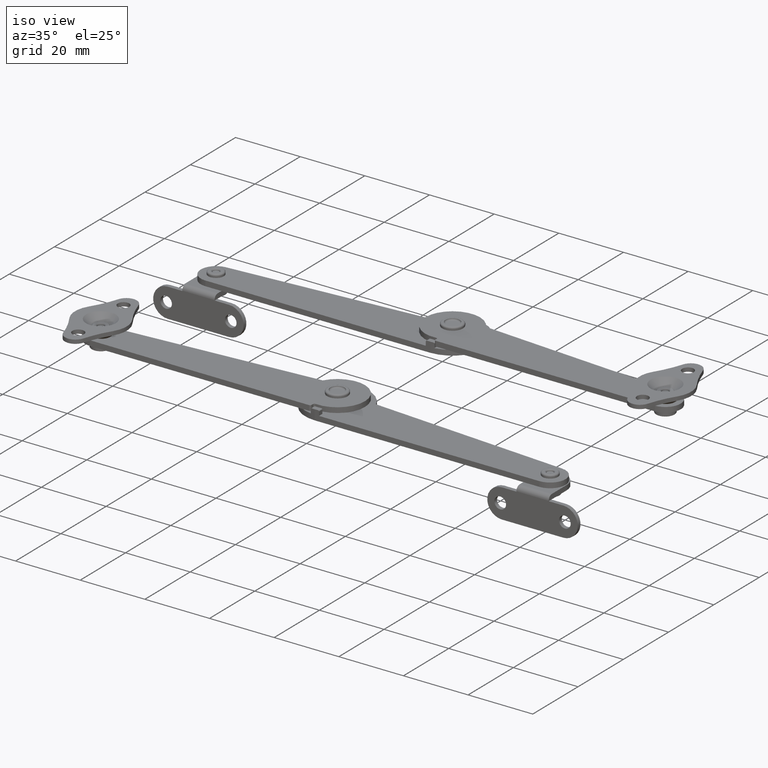
[diagram: clean part render]
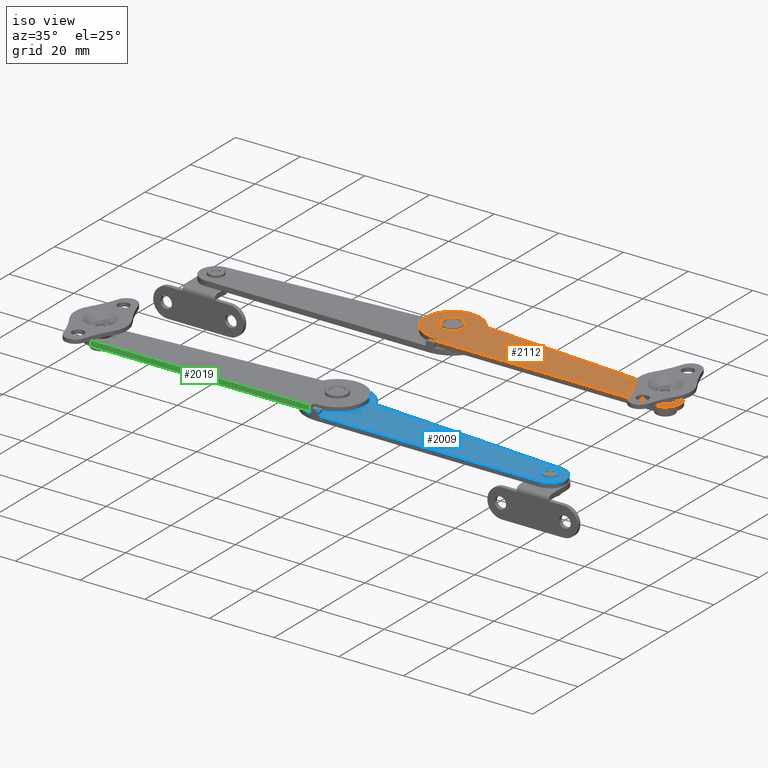
[diagram: same view with three faces highlighted in distinct colors, each labeled with its STEP entity id]
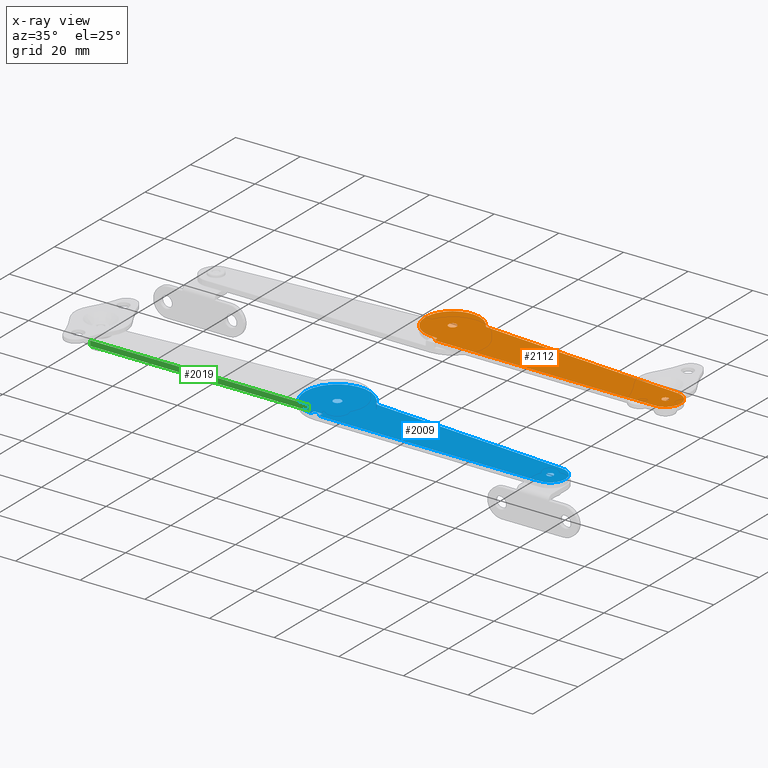
[diagram: x-ray of the same camera — body ghosted, the three highlighted faces saturated]
A machine part, iso view with three faces highlighted in distinct colors.
The next image is the same camera in x-ray (body ghosted, the three faces saturated) — at least one of them is partly hidden behind the body in this view.
Their STEP definitions:

[orange] entity #2112 — the highlighted planar face has unit normal (0, 0, 1).
#250=FACE_BOUND('',#652,.T.);
#251=FACE_BOUND('',#653,.T.);
#325=PLANE('',#2388);
#447=FACE_OUTER_BOUND('',#651,.T.);
#651=EDGE_LOOP('',(#1886,#1887,#1888,#1889,#1890,#1891,#1892));
#652=EDGE_LOOP('',(#1893));
#653=EDGE_LOOP('',(#1894));
#806=CIRCLE('',#2368,0.5);
#812=CIRCLE('',#2377,0.5);
#813=CIRCLE('',#2380,1.25);
#814=CIRCLE('',#2382,1.);
#815=CIRCLE('',#2384,8.5);
#816=CIRCLE('',#2387,4.75);
#934=LINE('',#3654,#1033);
#937=LINE('',#3662,#1036);
#939=LINE('',#3675,#1038);
#1033=VECTOR('',#2998,67.7);
#1036=VECTOR('',#3007,0.535626067594013);
#1038=VECTOR('',#3023,62.5949089222178);
#1187=VERTEX_POINT('',#3630);
#1188=VERTEX_POINT('',#3632);
#1196=VERTEX_POINT('',#3652);
#1197=VERTEX_POINT('',#3656);
#1198=VERTEX_POINT('',#3657);
#1199=VERTEX_POINT('',#3664);
#1200=VERTEX_POINT('',#3667);
#1201=VERTEX_POINT('',#3670);
#1202=VERTEX_POINT('',#3674);
#1419=EDGE_CURVE('',#1188,#1187,#806,.T.);
#1430=EDGE_CURVE('',#1187,#1196,#934,.T.);
#1431=EDGE_CURVE('',#1197,#1198,#812,.T.);
#1434=EDGE_CURVE('',#1198,#1188,#937,.T.);
#1435=EDGE_CURVE('',#1199,#1199,#813,.T.);
#1436=EDGE_CURVE('',#1200,#1200,#814,.T.);
#1437=EDGE_CURVE('',#1201,#1197,#815,.T.);
#1439=EDGE_CURVE('',#1202,#1201,#939,.T.);
#1441=EDGE_CURVE('',#1196,#1202,#816,.T.);
#1886=ORIENTED_EDGE('',*,*,#1419,.T.);
#1887=ORIENTED_EDGE('',*,*,#1430,.T.);
#1888=ORIENTED_EDGE('',*,*,#1441,.T.);
#1889=ORIENTED_EDGE('',*,*,#1439,.T.);
#1890=ORIENTED_EDGE('',*,*,#1437,.T.);
#1891=ORIENTED_EDGE('',*,*,#1431,.T.);
#1892=ORIENTED_EDGE('',*,*,#1434,.T.);
#1893=ORIENTED_EDGE('',*,*,#1435,.F.);
#1894=ORIENTED_EDGE('',*,*,#1436,.F.);
#2112=ADVANCED_FACE('',(#447,#250,#251),#325,.T.);
#2368=AXIS2_PLACEMENT_3D('',#3633,#2977,#2978);
#2377=AXIS2_PLACEMENT_3D('',#3658,#3001,#3002);
#2380=AXIS2_PLACEMENT_3D('',#3665,#3010,#3011);
#2382=AXIS2_PLACEMENT_3D('',#3668,#3014,#3015);
#2384=AXIS2_PLACEMENT_3D('',#3671,#3018,#3019);
#2387=AXIS2_PLACEMENT_3D('',#3678,#3027,#3028);
#2388=AXIS2_PLACEMENT_3D('',#3679,#3029,#3030);
#2977=DIRECTION('center_axis',(0.,0.,1.));
#2978=DIRECTION('ref_axis',(-0.707106781186547,-0.707106781186548,0.));
#2998=DIRECTION('',(1.,0.,0.));
#3001=DIRECTION('center_axis',(0.,0.,-1.));
#3002=DIRECTION('ref_axis',(0.674948557710554,0.737864787372621,0.));
#3007=DIRECTION('',(0.,-1.,0.));
#3010=DIRECTION('center_axis',(0.,0.,1.));
#3011=DIRECTION('ref_axis',(-1.,0.,0.));
#3014=DIRECTION('center_axis',(0.,0.,1.));
#3015=DIRECTION('ref_axis',(-1.,0.,0.));
#3018=DIRECTION('center_axis',(0.,0.,1.));
#3019=DIRECTION('ref_axis',(0.874085886861227,0.485771409605405,0.));
#3023=DIRECTION('',(-0.997246238420361,0.074161580056258,0.));
#3027=DIRECTION('center_axis',(0.,0.,1.));
#3028=DIRECTION('ref_axis',(0.,-1.,0.));
#3029=DIRECTION('center_axis',(0.,0.,1.));
#3030=DIRECTION('ref_axis',(1.,0.,0.));
#3630=CARTESIAN_POINT('',(1.8,-10.,-1.4));
#3632=CARTESIAN_POINT('',(1.3,-9.5,-1.4));
#3633=CARTESIAN_POINT('Origin',(1.8,-9.5,-1.4));
#3652=CARTESIAN_POINT('',(69.5,-10.,-1.4));
#3654=CARTESIAN_POINT('',(1.3,-10.,-1.4));
#3656=CARTESIAN_POINT('',(0.755555555555555,-8.46635315838343,-1.4));
#3657=CARTESIAN_POINT('',(1.3,-8.96437393240599,-1.4));
#3658=CARTESIAN_POINT('Origin',(0.8,-8.96437393240599,-1.4));
#3662=CARTESIAN_POINT('',(1.3,-8.4,-1.4));
#3664=CARTESIAN_POINT('',(1.25,1.53080849893419E-16,-1.4));
#3665=CARTESIAN_POINT('Origin',(0.,0.,-1.4));
#3667=CARTESIAN_POINT('',(70.5,-5.25,-1.4));
#3668=CARTESIAN_POINT('Origin',(69.5,-5.25,-1.4));
#3670=CARTESIAN_POINT('',(7.42973003832043,4.12905698164595,-1.4));
#3671=CARTESIAN_POINT('Origin',(0.,0.,-1.4));
#3674=CARTESIAN_POINT('',(69.8522675052672,-0.513080367503286,-1.4));
#3675=CARTESIAN_POINT('',(69.8522675052672,-0.513080367503286,-1.4));
#3678=CARTESIAN_POINT('Origin',(69.5,-5.25,-1.4));
#3679=CARTESIAN_POINT('Origin',(32.426543516099,-3.52463199238773,-1.4));

[blue] entity #2009 — the highlighted planar face has unit normal (-0, 0, 1).
#183=FACE_BOUND('',#482,.T.);
#184=FACE_BOUND('',#483,.T.);
#279=PLANE('',#2161);
#344=FACE_OUTER_BOUND('',#481,.T.);
#481=EDGE_LOOP('',(#1494,#1495,#1496,#1497,#1498,#1499,#1500));
#482=EDGE_LOOP('',(#1501));
#483=EDGE_LOOP('',(#1502));
#708=CIRCLE('',#2162,4.75);
#709=CIRCLE('',#2163,10.);
#710=CIRCLE('',#2164,1.);
#711=CIRCLE('',#2165,1.25);
#846=LINE('',#3188,#945);
#851=LINE('',#3202,#950);
#854=LINE('',#3207,#953);
#855=LINE('',#3210,#954);
#856=LINE('',#3214,#955);
#945=VECTOR('',#2468,2.6);
#950=VECTOR('',#2483,1.41513993849809);
#953=VECTOR('',#2488,1.5);
#954=VECTOR('',#2491,68.2);
#955=VECTOR('',#2494,60.8546954375881);
#1048=VERTEX_POINT('',#3185);
#1049=VERTEX_POINT('',#3187);
#1053=VERTEX_POINT('',#3201);
#1054=VERTEX_POINT('',#3205);
#1055=VERTEX_POINT('',#3209);
#1056=VERTEX_POINT('',#3211);
#1057=VERTEX_POINT('',#3213);
#1058=VERTEX_POINT('',#3216);
#1059=VERTEX_POINT('',#3218);
#1235=EDGE_CURVE('',#1049,#1048,#846,.T.);
#1242=EDGE_CURVE('',#1053,#1049,#851,.T.);
#1245=EDGE_CURVE('',#1048,#1054,#854,.T.);
#1246=EDGE_CURVE('',#1054,#1055,#855,.T.);
#1247=EDGE_CURVE('',#1055,#1056,#708,.T.);
#1248=EDGE_CURVE('',#1056,#1057,#856,.T.);
#1249=EDGE_CURVE('',#1057,#1053,#709,.T.);
#1250=EDGE_CURVE('',#1058,#1058,#710,.T.);
#1251=EDGE_CURVE('',#1059,#1059,#711,.T.);
#1494=ORIENTED_EDGE('',*,*,#1242,.T.);
#1495=ORIENTED_EDGE('',*,*,#1235,.T.);
#1496=ORIENTED_EDGE('',*,*,#1245,.T.);
#1497=ORIENTED_EDGE('',*,*,#1246,.T.);
#1498=ORIENTED_EDGE('',*,*,#1247,.T.);
#1499=ORIENTED_EDGE('',*,*,#1248,.T.);
#1500=ORIENTED_EDGE('',*,*,#1249,.T.);
#1501=ORIENTED_EDGE('',*,*,#1250,.T.);
#1502=ORIENTED_EDGE('',*,*,#1251,.T.);
#2009=ADVANCED_FACE('',(#344,#183,#184),#279,.T.);
#2161=AXIS2_PLACEMENT_3D('',#3208,#2489,#2490);
#2162=AXIS2_PLACEMENT_3D('',#3212,#2492,#2493);
#2163=AXIS2_PLACEMENT_3D('',#3215,#2495,#2496);
#2164=AXIS2_PLACEMENT_3D('',#3217,#2497,#2498);
#2165=AXIS2_PLACEMENT_3D('',#3219,#2499,#2500);
#2468=DIRECTION('',(1.,0.,0.));
#2483=DIRECTION('',(1.80442434502127E-14,1.,0.));
#2488=DIRECTION('',(0.,-1.,0.));
#2489=DIRECTION('center_axis',(0.,0.,1.));
#2490=DIRECTION('ref_axis',(1.,0.,0.));
#2491=DIRECTION('',(1.,0.,0.));
#2492=DIRECTION('center_axis',(0.,0.,1.));
#2493=DIRECTION('ref_axis',(0.,-1.,0.));
#2494=DIRECTION('',(-0.997246238420361,0.0741615800562579,0.));
#2495=DIRECTION('center_axis',(0.,0.,1.));
#2496=DIRECTION('ref_axis',(0.916515138991578,0.39999999999906,0.));
#2497=DIRECTION('center_axis',(0.,0.,-1.));
#2498=DIRECTION('ref_axis',(-1.,0.,0.));
#2499=DIRECTION('center_axis',(0.,0.,-1.));
#2500=DIRECTION('ref_axis',(-1.,0.,0.));
#3185=CARTESIAN_POINT('',(1.3,-8.5,1.6));
#3187=CARTESIAN_POINT('',(-1.3,-8.5,1.6));
#3188=CARTESIAN_POINT('',(16.5187139800561,-8.5,1.6));
#3201=CARTESIAN_POINT('',(-1.30000000000003,-9.91513993849809,1.6));
#3202=CARTESIAN_POINT('',(-1.29999999999995,-5.91760443113116,1.6));
#3205=CARTESIAN_POINT('',(1.3,-10.,1.6));
#3207=CARTESIAN_POINT('',(1.3,-6.66760443113146,1.6));
#3208=CARTESIAN_POINT('Origin',(31.7374279601123,-3.33520886226292,1.6));
#3209=CARTESIAN_POINT('',(69.5,-10.,1.6));
#3210=CARTESIAN_POINT('',(-1.83697019872103E-15,-10.,1.6));
#3211=CARTESIAN_POINT('',(69.8522675052672,-0.513080367503286,1.6));
#3212=CARTESIAN_POINT('Origin',(69.5,-5.25,1.6));
#3213=CARTESIAN_POINT('',(9.16515138991579,3.9999999999906,1.6));
#3214=CARTESIAN_POINT('',(69.8522675052672,-0.513080367503286,1.6));
#3215=CARTESIAN_POINT('Origin',(0.,0.,1.6));
#3216=CARTESIAN_POINT('',(70.5,-5.25,1.6));
#3217=CARTESIAN_POINT('Origin',(69.5,-5.25,1.6));
#3218=CARTESIAN_POINT('',(1.25,1.53080849893419E-16,1.6));
#3219=CARTESIAN_POINT('Origin',(0.,0.,1.6));

[green] entity #2019 — the highlighted planar face has unit normal (-0, -1, -0).
#284=PLANE('',#2187);
#354=FACE_OUTER_BOUND('',#499,.T.);
#499=EDGE_LOOP('',(#1548,#1549,#1550,#1551));
#864=LINE('',#3252,#963);
#865=LINE('',#3255,#964);
#868=LINE('',#3271,#967);
#869=LINE('',#3272,#968);
#963=VECTOR('',#2538,1.6);
#964=VECTOR('',#2541,67.7);
#967=VECTOR('',#2556,67.7);
#968=VECTOR('',#2557,1.6);
#1066=VERTEX_POINT('',#3245);
#1069=VERTEX_POINT('',#3250);
#1070=VERTEX_POINT('',#3254);
#1077=VERTEX_POINT('',#3270);
#1265=EDGE_CURVE('',#1069,#1066,#864,.T.);
#1266=EDGE_CURVE('',#1066,#1070,#865,.T.);
#1274=EDGE_CURVE('',#1069,#1077,#868,.T.);
#1275=EDGE_CURVE('',#1077,#1070,#869,.T.);
#1548=ORIENTED_EDGE('',*,*,#1265,.F.);
#1549=ORIENTED_EDGE('',*,*,#1274,.T.);
#1550=ORIENTED_EDGE('',*,*,#1275,.T.);
#1551=ORIENTED_EDGE('',*,*,#1266,.F.);
#2019=ADVANCED_FACE('',(#354),#284,.T.);
#2187=AXIS2_PLACEMENT_3D('',#3269,#2554,#2555);
#2538=DIRECTION('',(0.,0.,1.));
#2541=DIRECTION('',(1.,0.,0.));
#2554=DIRECTION('center_axis',(0.,-1.,0.));
#2555=DIRECTION('ref_axis',(1.,0.,0.));
#2556=DIRECTION('',(1.,0.,0.));
#2557=DIRECTION('',(0.,0.,1.));
#3245=CARTESIAN_POINT('',(1.8,-10.,3.));
#3250=CARTESIAN_POINT('',(1.8,-10.,1.4));
#3252=CARTESIAN_POINT('',(1.8,-10.,1.4));
#3254=CARTESIAN_POINT('',(69.5,-10.,3.));
#3255=CARTESIAN_POINT('',(1.3,-10.,3.));
#3269=CARTESIAN_POINT('Origin',(1.3,-10.,1.4));
#3270=CARTESIAN_POINT('',(69.5,-10.,1.4));
#3271=CARTESIAN_POINT('',(1.3,-10.,1.4));
#3272=CARTESIAN_POINT('',(69.5,-10.,1.4));